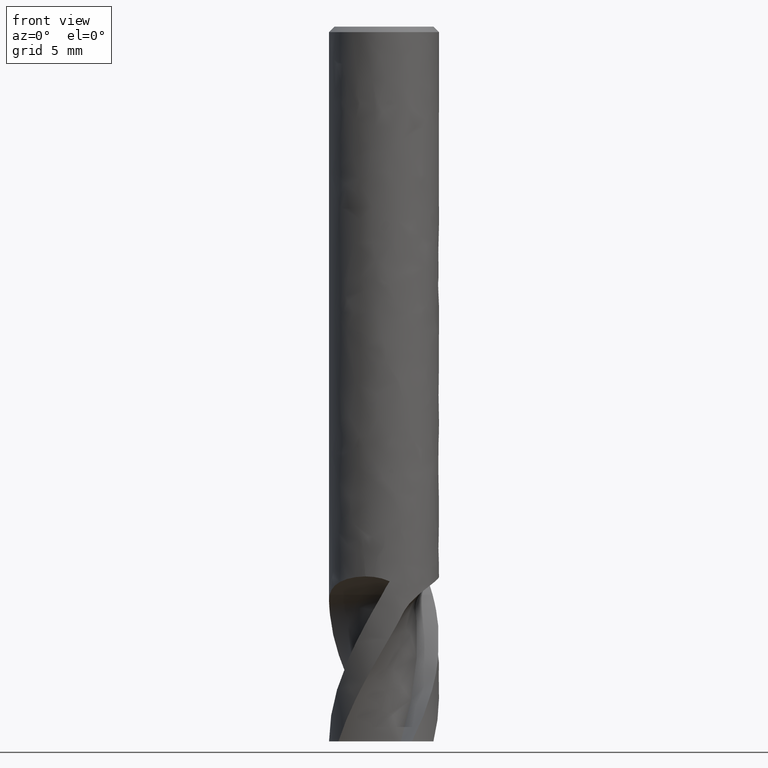
[diagram: clean part render]
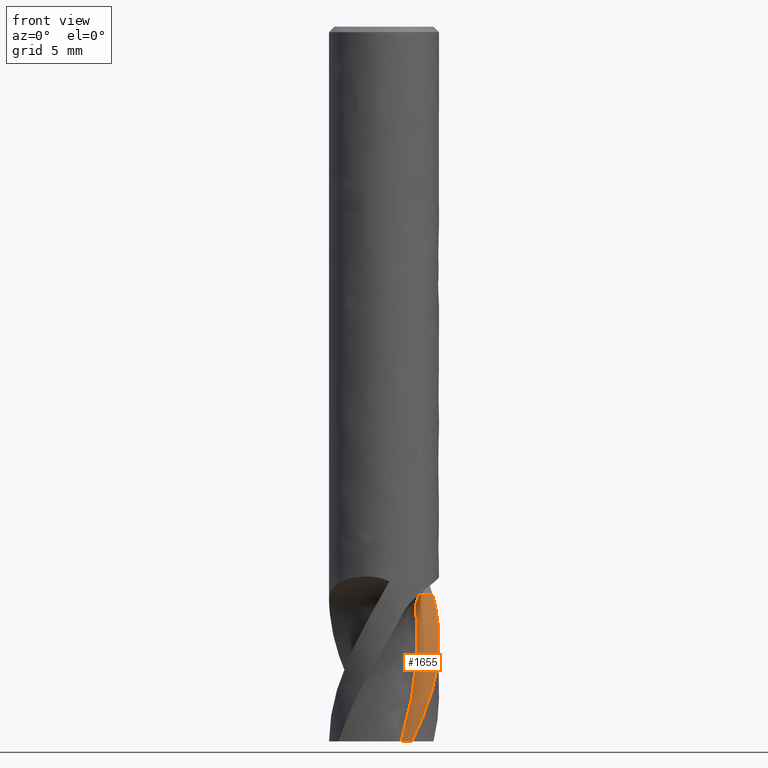
[diagram: same view with one face highlighted and labeled with its STEP entity id]
A machine part, front view. The second image highlights one B-rep face of the part: STEP entity #1655.
In plain terms, the highlighted face is a freeform B-spline surface patch.
Its self-contained STEP definition (entity closure, byte-faithful):
#1024 = VERTEX_POINT('', #1025);
#1025 = CARTESIAN_POINT('', (1.92311852378807, 1.01739110319197, -31.));
#1031 = EDGE_CURVE('', #1024, #1032, #1034, .T.);
#1032 = VERTEX_POINT('', #1033);
#1033 = CARTESIAN_POINT('', (2.65178013950348, 1.40287636366677, -31.));
#1034 = LINE('', #1035, #1036);
#1035 = CARTESIAN_POINT('', (1.92311852378807, 1.01739110319197, -31.));
#1036 = VECTOR('', #1037, 0.82434618714489);
#1037 = DIRECTION('', (0.728661615715414, 0.385485260474796, 0.));
#1527 = EDGE_CURVE('', #1032, #1528, #1530, .T.);
#1528 = VERTEX_POINT('', #1529);
#1529 = CARTESIAN_POINT('', (1.52468476033425, -2.58366723507585, -39.));
#1530 = B_SPLINE_CURVE_WITH_KNOTS('', 3, (#1531, #1532, #1533, #1534, #1535, #1536, #1537, #1538, #1539, #1540, #1541, #1542, #1543, #1544, #1545, #1546, #1547, #1548, #1549, #1550, #1551, #1552, #1553, #1554, #1555, #1556, #1557, #1558, #1559, #1560, #1561, #1562, #1563, #1564, #1565, #1566, #1567, #1568, #1569, #1570, #1571, #1572, #1573, #1574, #1575, #1576, #1577, #1578, #1579, #1580, #1581, #1582, #1583, #1584, #1585, #1586, #1587, #1588, #1589, #1590, #1591, #1592, #1593, #1594, #1595, #1596, #1597, #1598, #1599, #1600, #1601, #1602, #1603, #1604, #1605, #1606, #1607, #1608, #1609, #1610, #1611, #1612, #1613, #1614, #1615, #1616, #1617, #1618, #1619, #1620, #1621, #1622, #1623, #1624, #1625, #1626, #1627), .UNSPECIFIED., .F., .U., (4, 3, 3, 3, 3, 3, 3, 3, 3, 3, 3, 3, 3, 3, 3, 3, 3, 3, 3, 3, 3, 3, 3, 3, 3, 3, 3, 3, 3, 3, 3, 3, 4), (0.845078850283558, 0.91937926567868, 1.00693931235693, 1.13828400592833, 1.33540682659756, 1.46683118278683, 1.59827610052119, 1.65667285176064, 1.78806992480854, 1.9193579792773, 2.05059575475087, 2.18184235817023, 2.26939187005176, 2.32777724736753, 2.52482915734753, 2.72185893721554, 2.91881007695306, 3.00634940108574, 3.30149193088526, 3.59670505573072, 3.72801288612655, 3.78638612114345, 3.84478691181139, 4.28897318905193, 4.95551492702064, 5.62182241058851, 6.28784242430268, 6.95360241158249, 7.61910432181197, 8.28435488749657, 8.94935719296886, 9.6141136533892, 10.0590532441608), .UNSPECIFIED.);
#1531 = CARTESIAN_POINT('', (2.65178013950348, 1.40287636366677, -31.));
#1532 = CARTESIAN_POINT('', (2.65751994701813, 1.39202672077155, -31.0215112643788));
#1533 = CARTESIAN_POINT('', (2.66319031774882, 1.38114722329207, -31.0430264382877));
#1534 = CARTESIAN_POINT('', (2.66879028186562, 1.37024028236642, -31.0645455850637));
#1535 = CARTESIAN_POINT('', (2.67538961400739, 1.35738689182361, -31.0899050327351));
#1536 = CARTESIAN_POINT('', (2.68189126345756, 1.34449520038901, -31.1152707052813));
#1537 = CARTESIAN_POINT('', (2.68829407769576, 1.3315686057526, -31.1406433192638));
#1538 = CARTESIAN_POINT('', (2.69789863714969, 1.31217803121717, -31.1787035800226));
#1539 = CARTESIAN_POINT('', (2.70728232592541, 1.29270635690717, -31.2167789721682));
#1540 = CARTESIAN_POINT('', (2.71645631422693, 1.27313200136382, -31.2548513760305));
#1541 = CARTESIAN_POINT('', (2.73022468508082, 1.2437547035639, -31.3119906439746));
#1542 = CARTESIAN_POINT('', (2.74352255378944, 1.2141432444032, -31.3691254363431));
#1543 = CARTESIAN_POINT('', (2.75637340366404, 1.18423209700359, -31.426201425357));
#1544 = CARTESIAN_POINT('', (2.76494123292663, 1.16428994481375, -31.4642547318416));
#1545 = CARTESIAN_POINT('', (2.77331030456763, 1.1442139985432, -31.5022834821385));
#1546 = CARTESIAN_POINT('', (2.78148210023363, 1.12399169306535, -31.5402759996043));
#1547 = CARTESIAN_POINT('', (2.78965517438978, 1.10376622377633, -31.5782744610587));
#1548 = CARTESIAN_POINT('', (2.79763116685599, 1.08339352782394, -31.6162377984082));
#1549 = CARTESIAN_POINT('', (2.80540685801481, 1.06286987021154, -31.6541596908614));
#1550 = CARTESIAN_POINT('', (2.80886134762265, 1.05375186893181, -31.6710071685599));
#1551 = CARTESIAN_POINT('', (2.81227636376907, 1.04460387607456, -31.6878465831621));
#1552 = CARTESIAN_POINT('', (2.81565107436721, 1.03542697831126, -31.7046782445897));
#1553 = CARTESIAN_POINT('', (2.82324442648985, 1.01477826960461, -31.7425507460418));
#1554 = CARTESIAN_POINT('', (2.83062917000597, 0.993993210246564, -31.7803914877478));
#1555 = CARTESIAN_POINT('', (2.83776584556418, 0.973182925122213, -31.8182643596877));
#1556 = CARTESIAN_POINT('', (2.84489659990807, 0.952389906042402, -31.8561058089589));
#1557 = CARTESIAN_POINT('', (2.85178023872008, 0.931571405031041, -31.8939807733452));
#1558 = CARTESIAN_POINT('', (2.85840261644222, 0.910787836060788, -31.9319196710239));
#1559 = CARTESIAN_POINT('', (2.86502245801209, 0.890012226512039, -31.9698440393559));
#1560 = CARTESIAN_POINT('', (2.87138184288168, 0.869271047979684, -32.0078336557547));
#1561 = CARTESIAN_POINT('', (2.87748684045423, 0.848569079693992, -32.0458844570821));
#1562 = CARTESIAN_POINT('', (2.88359224869047, 0.827865718853047, -32.0839378179652));
#1563 = CARTESIAN_POINT('', (2.8894438704496, 0.807200932966757, -32.1220535906815));
#1564 = CARTESIAN_POINT('', (2.89506214019977, 0.78652094974129, -32.160194602377));
#1565 = CARTESIAN_POINT('', (2.89880986975185, 0.772726136085636, -32.1856369899863));
#1566 = CARTESIAN_POINT('', (2.90245412081249, 0.758923093574581, -32.211090358896));
#1567 = CARTESIAN_POINT('', (2.90600302953815, 0.745081466898151, -32.236535831296));
#1568 = CARTESIAN_POINT('', (2.90836974033475, 0.735850706168599, -32.2535050122215));
#1569 = CARTESIAN_POINT('', (2.91069445249616, 0.726601016820563, -32.2704698229174));
#1570 = CARTESIAN_POINT('', (2.91297832899312, 0.717326463206571, -32.2874264714168));
#1571 = CARTESIAN_POINT('', (2.92068646151833, 0.68602464436305, -32.3446555264863));
#1572 = CARTESIAN_POINT('', (2.92792653228295, 0.654449740268381, -32.4018009356281));
#1573 = CARTESIAN_POINT('', (2.93467801708512, 0.62262744561847, -32.4588635585109));
#1574 = CARTESIAN_POINT('', (2.94142874365502, 0.59080872480321, -32.5159197729187));
#1575 = CARTESIAN_POINT('', (2.94769084457448, 0.558740426743624, -32.5728971854274));
#1576 = CARTESIAN_POINT('', (2.95343749271416, 0.526504488708584, -32.629829032756));
#1577 = CARTESIAN_POINT('', (2.95918184720484, 0.494281416943686, -32.6867381569821));
#1578 = CARTESIAN_POINT('', (2.96441095244962, 0.461888510618798, -32.7436056230668));
#1579 = CARTESIAN_POINT('', (2.96910086915246, 0.42946481671742, -32.8004974602472));
#1580 = CARTESIAN_POINT('', (2.97118540717012, 0.415053383232982, -32.8257843054113));
#1581 = CARTESIAN_POINT('', (2.97316327403218, 0.400638723273503, -32.8510783317642));
#1582 = CARTESIAN_POINT('', (2.97503442353141, 0.38622555431137, -32.8763808733796));
#1583 = CARTESIAN_POINT('', (2.98134308312306, 0.337630946207426, -32.9616894614538));
#1584 = CARTESIAN_POINT('', (2.98644204035799, 0.289037080043989, -33.0470962374708));
#1585 = CARTESIAN_POINT('', (2.99035051999529, 0.240424140975686, -33.1325380086596));
#1586 = CARTESIAN_POINT('', (2.99425993450057, 0.191799574194261, -33.2180002166381));
#1587 = CARTESIAN_POINT('', (2.99697946660757, 0.143148355267187, -33.3035099349205));
#1588 = CARTESIAN_POINT('', (2.99851395917122, 0.0944141761354948, -33.3889853473263));
#1589 = CARTESIAN_POINT('', (2.99919648603854, 0.0727377031424504, -33.4270039515502));
#1590 = CARTESIAN_POINT('', (2.99964428342476, 0.0510426952102296, -33.4650169331619));
#1591 = CARTESIAN_POINT('', (2.99985655365907, 0.0293369642040015, -33.5030243768317));
#1592 = CARTESIAN_POINT('', (2.99995091893978, 0.0196876254446873, -33.5199206840438));
#1593 = CARTESIAN_POINT('', (2.99999874295708, 0.0100360875428792, -33.5368160595975));
#1594 = CARTESIAN_POINT('', (2.99999997554321, 0.000383067510860016, -33.553710527433));
#1595 = CARTESIAN_POINT('', (3.0000012087112, -0.0092745093227738, -33.5706129704658));
#1596 = CARTESIAN_POINT('', (2.99995580641094, -0.018933625134911, -33.5875146020419));
#1597 = CARTESIAN_POINT('', (2.9998637317446, -0.0285935475826273, -33.60441545388));
#1598 = CARTESIAN_POINT('', (2.99916342781378, -0.102065241054728, -33.7329603994928));
#1599 = CARTESIAN_POINT('', (2.9957583515081, -0.175599717608482, -33.8614830749937));
#1600 = CARTESIAN_POINT('', (2.98966080277966, -0.248853941746902, -33.990009421535));
#1601 = CARTESIAN_POINT('', (2.98051087867112, -0.358778539539756, -34.1828748448673));
#1602 = CARTESIAN_POINT('', (2.96529693492338, -0.46815523421739, -34.3758604067083));
#1603 = CARTESIAN_POINT('', (2.94411583849892, -0.57635226164328, -34.5687566851554));
#1604 = CARTESIAN_POINT('', (2.922942186117, -0.684511263498696, -34.7615851706953));
#1605 = CARTESIAN_POINT('', (2.89578560735695, -0.791565284743845, -34.9544719824688));
#1606 = CARTESIAN_POINT('', (2.86283698779662, -0.896752129244179, -35.1472921948074));
#1607 = CARTESIAN_POINT('', (2.82990258349737, -1.0018935922239, -35.3400292173281));
#1608 = CARTESIAN_POINT('', (2.79115734617745, -1.10525075953305, -35.5328420261697));
#1609 = CARTESIAN_POINT('', (2.74686216571279, -1.20612944685706, -35.7255812009775));
#1610 = CARTESIAN_POINT('', (2.70258427889938, -1.30696874929049, -35.9182451268748));
#1611 = CARTESIAN_POINT('', (2.65272795006649, -1.40540518639188, -36.1109799189524));
#1612 = CARTESIAN_POINT('', (2.59763320631043, -1.50076704570476, -36.3036432769553));
#1613 = CARTESIAN_POINT('', (2.54255981963385, -1.59609193868166, -36.496231950399));
#1614 = CARTESIAN_POINT('', (2.48221124485243, -1.68841558741756, -36.6888927670214));
#1615 = CARTESIAN_POINT('', (2.41699703670325, -1.77711151157369, -36.8814815786733));
#1616 = CARTESIAN_POINT('', (2.35180745843899, -1.8657739373486, -37.0739976540242));
#1617 = CARTESIAN_POINT('', (2.28170778595435, -1.95087680586284, -37.2665854511645));
#1618 = CARTESIAN_POINT('', (2.20717386598088, -2.03184239677466, -37.4591014608591));
#1619 = CARTESIAN_POINT('', (2.13266776080043, -2.11277777270311, -37.6515456268488));
#1620 = CARTESIAN_POINT('', (2.05367586990578, -2.18963858466012, -37.8440616386716));
#1621 = CARTESIAN_POINT('', (1.97073353242675, -2.26190392018953, -38.0365057649618));
#1622 = CARTESIAN_POINT('', (1.88782185794408, -2.33414253990905, -38.2288787464818));
#1623 = CARTESIAN_POINT('', (1.80090163635257, -2.40184218091909, -38.421323333699));
#1624 = CARTESIAN_POINT('', (1.71056280415619, -2.46454354658977, -38.6136968300643));
#1625 = CARTESIAN_POINT('', (1.65009656513262, -2.5065112770947, -38.7424576467609));
#1626 = CARTESIAN_POINT('', (1.58807518419517, -2.5462590069961, -38.8712402119587));
#1627 = CARTESIAN_POINT('', (1.52468476033425, -2.58366723507585, -39.));
#1655 = ADVANCED_FACE('', (#1656), #1688, .T.);
#1656 = FACE_OUTER_BOUND('', #1657, .T.);
#1657 = EDGE_LOOP('', (#1658, #1659, #1681, #1687));
#1658 = ORIENTED_EDGE('', *, *, #1031, .F.);
#1659 = ORIENTED_EDGE('', *, *, #1660, .F.);
#1660 = EDGE_CURVE('', #1661, #1024, #1663, .T.);
#1661 = VERTEX_POINT('', #1662);
#1662 = CARTESIAN_POINT('', (0.923718345672581, -1.56529460137682, -39.));
#1663 = B_SPLINE_CURVE_WITH_KNOTS('', 3, (#1664, #1665, #1666, #1667, #1668, #1669, #1670, #1671, #1672, #1673, #1674, #1675, #1676, #1677, #1678, #1679, #1680), .UNSPECIFIED., .F., .U., (4, 1, 1, 1, 1, 1, 1, 1, 1, 1, 1, 1, 1, 1, 4), (0.0499999999999827, 1.13125, 1.696875, 2.2625, 2.828125, 3.39375, 3.959375, 4.525, 5.090625, 5.65625, 6.221875, 6.7875, 7.353125, 7.91875, 8.05), .UNSPECIFIED.);
#1664 = CARTESIAN_POINT('', (0.923718345672575, -1.56529460137682, -39.));
#1665 = CARTESIAN_POINT('', (1.02949634842434, -1.49893860487378, -38.6395833333333));
#1666 = CARTESIAN_POINT('', (1.1801369558962, -1.38226625022597, -38.090625));
#1667 = CARTESIAN_POINT('', (1.3558380253665, -1.19835223728856, -37.353125));
#1668 = CARTESIAN_POINT('', (1.47525434771306, -1.04444943946723, -36.7875));
#1669 = CARTESIAN_POINT('', (1.57817939069388, -0.879258361981643, -36.221875));
#1670 = CARTESIAN_POINT('', (1.66361192078373, -0.704434916410951, -35.65625));
#1671 = CARTESIAN_POINT('', (1.73068972291137, -0.521728971602078, -35.090625));
#1672 = CARTESIAN_POINT('', (1.77876147802027, -0.332916610516549, -34.525));
#1673 = CARTESIAN_POINT('', (1.80714929363868, -0.139996780006337, -33.959375));
#1674 = CARTESIAN_POINT('', (1.81605873491843, 0.0556041969228887, -33.39375));
#1675 = CARTESIAN_POINT('', (1.80320368593934, 0.250126134619396, -32.828125));
#1676 = CARTESIAN_POINT('', (1.77641974256776, 0.448386453544023, -32.2625));
#1677 = CARTESIAN_POINT('', (1.66490830772293, 0.612649364363776, -31.696875));
#1678 = CARTESIAN_POINT('', (1.7869425901634, 0.821585447327192, -31.2760416666667));
#1679 = CARTESIAN_POINT('', (1.90025499448872, 0.984813980184148, -31.04375));
#1680 = CARTESIAN_POINT('', (1.92311852378807, 1.01739110319197, -31.));
#1681 = ORIENTED_EDGE('', *, *, #1682, .T.);
#1682 = EDGE_CURVE('', #1661, #1528, #1683, .T.);
#1683 = LINE('', #1684, #1685);
#1684 = CARTESIAN_POINT('', (0.923718345672581, -1.56529460137682, -39.));
#1685 = VECTOR('', #1686, 1.18247344689782);
#1686 = DIRECTION('', (0.600966414661671, -1.01837263369903, 0.));
#1687 = ORIENTED_EDGE('', *, *, #1527, .F.);
#1688 = B_SPLINE_SURFACE_WITH_KNOTS('', 3, 1, ((#1689, #1690), (#1691, #1692), (#1693, #1694), (#1695, #1696), (#1697, #1698), (#1699, #1700), (#1701, #1702), (#1703, #1704), (#1705, #1706), (#1707, #1708), (#1709, #1710), (#1711, #1712), (#1713, #1714), (#1715, #1716), (#1717, #1718), (#1719, #1720), (#1721, #1722)), .UNSPECIFIED., .F., .F., .U., (4, 1, 1, 1, 1, 1, 1, 1, 1, 1, 1, 1, 1, 1, 4), (2, 2), (0.0499999999999827, 1.13125, 1.696875, 2.2625, 2.828125, 3.39375, 3.959375, 4.525, 5.090625, 5.65625, 6.221875, 6.7875, 7.353125, 7.91875, 8.05), (0.203424687713716, 1.), .UNSPECIFIED.);
#1689 = CARTESIAN_POINT('', (1.53689437039649, -2.6043571313033, -39.));
#1690 = CARTESIAN_POINT('', (0.923718345672575, -1.56529460137682, -39.));
#1691 = CARTESIAN_POINT('', (1.71288916112743, -2.49395317760319, -38.6395833333333));
#1692 = CARTESIAN_POINT('', (1.02949634842434, -1.49893860487378, -38.6395833333333));
#1693 = CARTESIAN_POINT('', (1.9635269260492, -2.29983222517309, -38.090625));
#1694 = CARTESIAN_POINT('', (1.1801369558962, -1.38226625022597, -38.090625));
#1695 = CARTESIAN_POINT('', (2.25586060742145, -1.99383374366115, -37.353125));
#1696 = CARTESIAN_POINT('', (1.3558380253665, -1.19835223728856, -37.353125));
#1697 = CARTESIAN_POINT('', (2.45454700832242, -1.7377683048096, -36.7875));
#1698 = CARTESIAN_POINT('', (1.47525434771306, -1.04444943946723, -36.7875));
#1699 = CARTESIAN_POINT('', (2.62579500818202, -1.46292128221152, -36.221875));
#1700 = CARTESIAN_POINT('', (1.57817939069388, -0.879258361981643, -36.221875));
#1701 = CARTESIAN_POINT('', (2.76793874188497, -1.17204780268213, -35.65625));
#1702 = CARTESIAN_POINT('', (1.66361192078373, -0.704434916410951, -35.65625));
#1703 = CARTESIAN_POINT('', (2.8795436449937, -0.868059320337684, -35.090625));
#1704 = CARTESIAN_POINT('', (1.73068972291137, -0.521728971602078, -35.090625));
#1705 = CARTESIAN_POINT('', (2.95952604455094, -0.553910904672809, -34.525));
#1706 = CARTESIAN_POINT('', (1.77876147802027, -0.332916610516549, -34.525));
#1707 = CARTESIAN_POINT('', (3.00675805441215, -0.232928428966856, -33.959375));
#1708 = CARTESIAN_POINT('', (1.80714929363868, -0.139996780006337, -33.959375));
#1709 = CARTESIAN_POINT('', (3.0215816965, 0.092514972363119, -33.39375));
#1710 = CARTESIAN_POINT('', (1.81605873491843, 0.0556041969228887, -33.39375));
#1711 = CARTESIAN_POINT('', (3.0001933019751, 0.416163054448901, -32.828125));
#1712 = CARTESIAN_POINT('', (1.80320368593934, 0.250126134619396, -32.828125));
#1713 = CARTESIAN_POINT('', (2.95562983522395, 0.746031102924663, -32.2625));
#1714 = CARTESIAN_POINT('', (1.77641974256776, 0.448386453544023, -32.2625));
#1715 = CARTESIAN_POINT('', (2.77009568701661, 1.0193338299805, -31.696875));
#1716 = CARTESIAN_POINT('', (1.66490830772293, 0.612649364363776, -31.696875));
#1717 = CARTESIAN_POINT('', (2.97313788332763, 1.36696435088929, -31.2760416666667));
#1718 = CARTESIAN_POINT('', (1.7869425901634, 0.821585447327192, -31.2760416666667));
#1719 = CARTESIAN_POINT('', (3.16166850753741, 1.63854606669172, -31.04375));
#1720 = CARTESIAN_POINT('', (1.90025499448872, 0.984813980184149, -31.04375));
#1721 = CARTESIAN_POINT('', (3.19970913932975, 1.692748299644, -31.));
#1722 = CARTESIAN_POINT('', (1.92311852378807, 1.01739110319197, -31.));